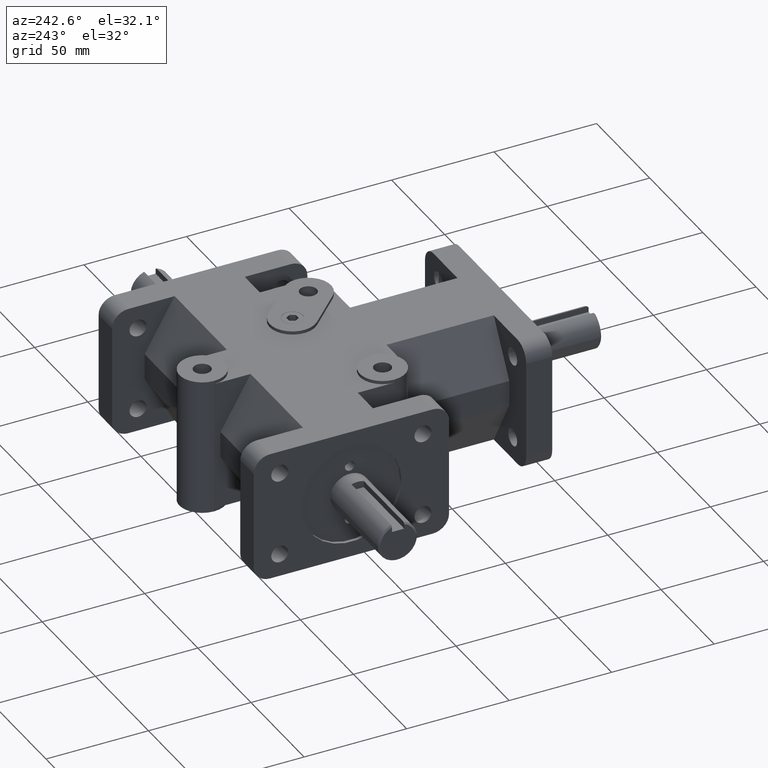
[diagram: clean part render]
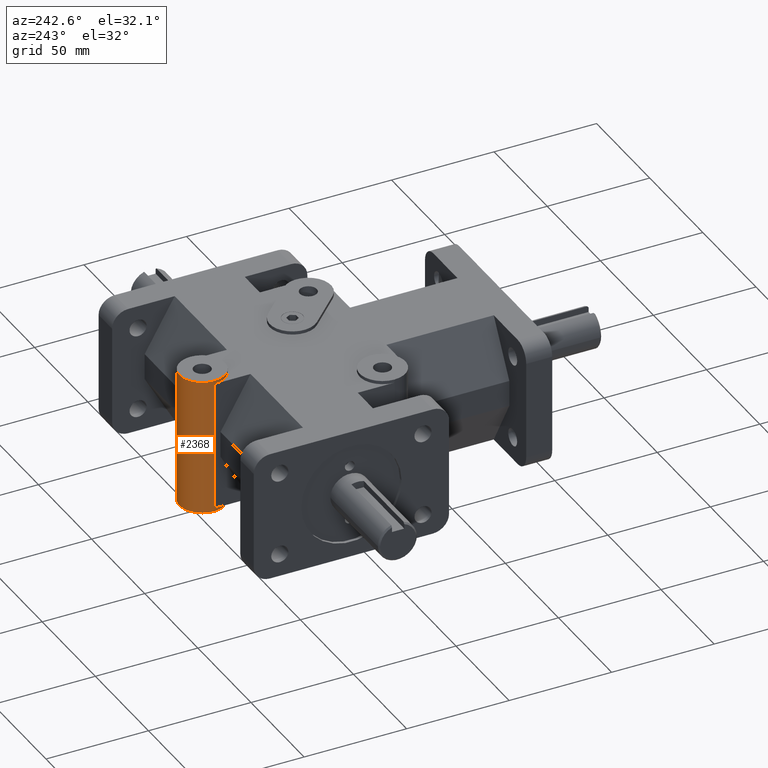
[diagram: same view with one face highlighted and labeled with its STEP entity id]
A machine part, auxiliary view. The second image highlights one B-rep face of the part: STEP entity #2368.
In plain terms, the highlighted cylindrical surface (bore or boss wall) has radius 11.1125 mm, axis along (0, 0, -1).
Its self-contained STEP definition (entity closure, byte-faithful):
#249=FACE_OUTER_BOUND('',#406,.T.);
#406=EDGE_LOOP('',(#2065,#2066,#2067,#2068,#2069,#2070,#2071,#2072,#2073,
#2074));
#650=LINE('',#3984,#872);
#652=LINE('',#3987,#874);
#653=LINE('',#3988,#875);
#654=LINE('',#3989,#876);
#872=VECTOR('',#3257,1.);
#874=VECTOR('',#3261,11.1125);
#875=VECTOR('',#3262,1.);
#876=VECTOR('',#3263,11.1125);
#966=CIRCLE('',#2532,11.1125);
#967=CIRCLE('',#2534,11.1125);
#1000=CIRCLE('',#2601,11.1125);
#1001=CIRCLE('',#2603,11.1125);
#1139=VERTEX_POINT('',#3719);
#1140=VERTEX_POINT('',#3721);
#1143=VERTEX_POINT('',#3729);
#1144=VERTEX_POINT('',#3731);
#1203=VERTEX_POINT('',#3918);
#1204=VERTEX_POINT('',#3921);
#1402=EDGE_CURVE('',#1139,#1140,#966,.T.);
#1407=EDGE_CURVE('',#1143,#1144,#967,.T.);
#1501=EDGE_CURVE('',#1203,#1203,#1000,.T.);
#1502=EDGE_CURVE('',#1204,#1204,#1001,.T.);
#1533=EDGE_CURVE('',#1143,#1140,#650,.T.);
#1535=EDGE_CURVE('',#1204,#1139,#652,.T.);
#1536=EDGE_CURVE('',#1144,#1139,#653,.T.);
#1537=EDGE_CURVE('',#1144,#1203,#654,.T.);
#2065=ORIENTED_EDGE('',*,*,#1502,.T.);
#2066=ORIENTED_EDGE('',*,*,#1535,.T.);
#2067=ORIENTED_EDGE('',*,*,#1536,.F.);
#2068=ORIENTED_EDGE('',*,*,#1537,.T.);
#2069=ORIENTED_EDGE('',*,*,#1501,.T.);
#2070=ORIENTED_EDGE('',*,*,#1537,.F.);
#2071=ORIENTED_EDGE('',*,*,#1407,.F.);
#2072=ORIENTED_EDGE('',*,*,#1533,.T.);
#2073=ORIENTED_EDGE('',*,*,#1402,.F.);
#2074=ORIENTED_EDGE('',*,*,#1535,.F.);
#2267=CYLINDRICAL_SURFACE('',#2617,11.1125);
#2368=ADVANCED_FACE('',(#249),#2267,.T.);
#2532=AXIS2_PLACEMENT_3D('',#3722,#2992,#2993);
#2534=AXIS2_PLACEMENT_3D('',#3732,#3000,#3001);
#2601=AXIS2_PLACEMENT_3D('',#3919,#3195,#3196);
#2603=AXIS2_PLACEMENT_3D('',#3922,#3199,#3200);
#2617=AXIS2_PLACEMENT_3D('',#3986,#3259,#3260);
#2992=DIRECTION('center_axis',(0.,0.,1.));
#2993=DIRECTION('ref_axis',(1.,0.,0.));
#3000=DIRECTION('center_axis',(0.,0.,-1.));
#3001=DIRECTION('ref_axis',(1.,0.,0.));
#3195=DIRECTION('center_axis',(0.,0.,-1.));
#3196=DIRECTION('ref_axis',(1.,0.,0.));
#3199=DIRECTION('center_axis',(0.,0.,1.));
#3200=DIRECTION('ref_axis',(1.,0.,0.));
#3257=DIRECTION('',(0.,0.,-1.));
#3259=DIRECTION('center_axis',(0.,0.,-1.));
#3260=DIRECTION('ref_axis',(1.,0.,0.));
#3261=DIRECTION('',(0.,0.,1.));
#3262=DIRECTION('',(0.,0.,-1.));
#3263=DIRECTION('',(0.,0.,1.));
#3719=CARTESIAN_POINT('',(-11.1125,146.05,-31.75));
#3721=CARTESIAN_POINT('',(11.1125,146.05,-31.75));
#3722=CARTESIAN_POINT('Origin',(0.,146.05,-31.75));
#3729=CARTESIAN_POINT('',(11.1125,146.05,31.75));
#3731=CARTESIAN_POINT('',(-11.1125,146.05,31.75));
#3732=CARTESIAN_POINT('Origin',(0.,146.05,31.75));
#3918=CARTESIAN_POINT('',(-11.1125,146.05,33.3375));
#3919=CARTESIAN_POINT('Origin',(0.,146.05,33.3375));
#3921=CARTESIAN_POINT('',(-11.1125,146.05,-33.3375));
#3922=CARTESIAN_POINT('Origin',(0.,146.05,-33.3375));
#3984=CARTESIAN_POINT('',(11.1125,146.05,0.));
#3986=CARTESIAN_POINT('Origin',(0.,146.05,0.));
#3987=CARTESIAN_POINT('',(-11.1125,146.05,0.));
#3988=CARTESIAN_POINT('',(-11.1125,146.05,0.));
#3989=CARTESIAN_POINT('',(-11.1125,146.05,0.));